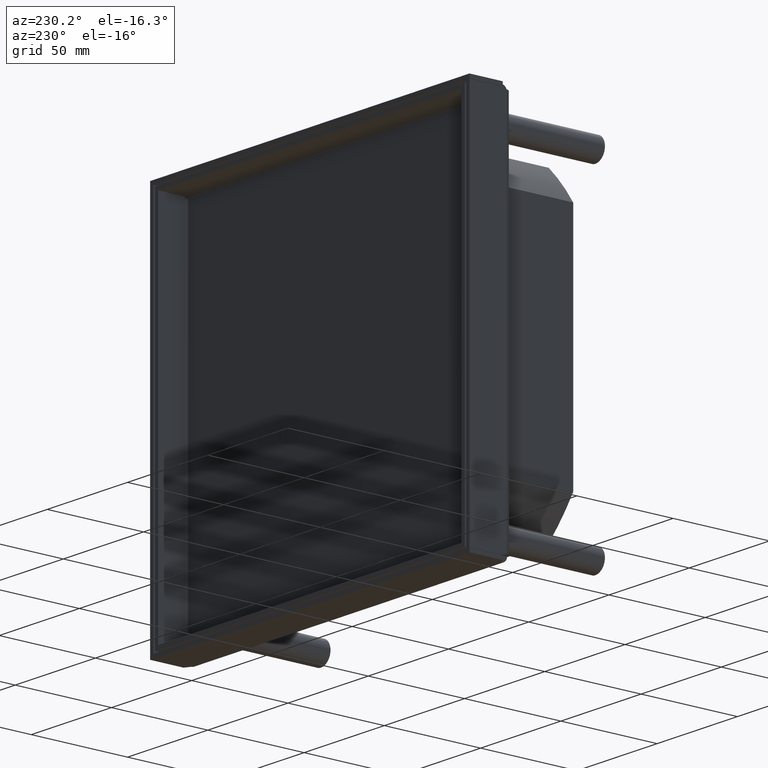
[diagram: clean part render]
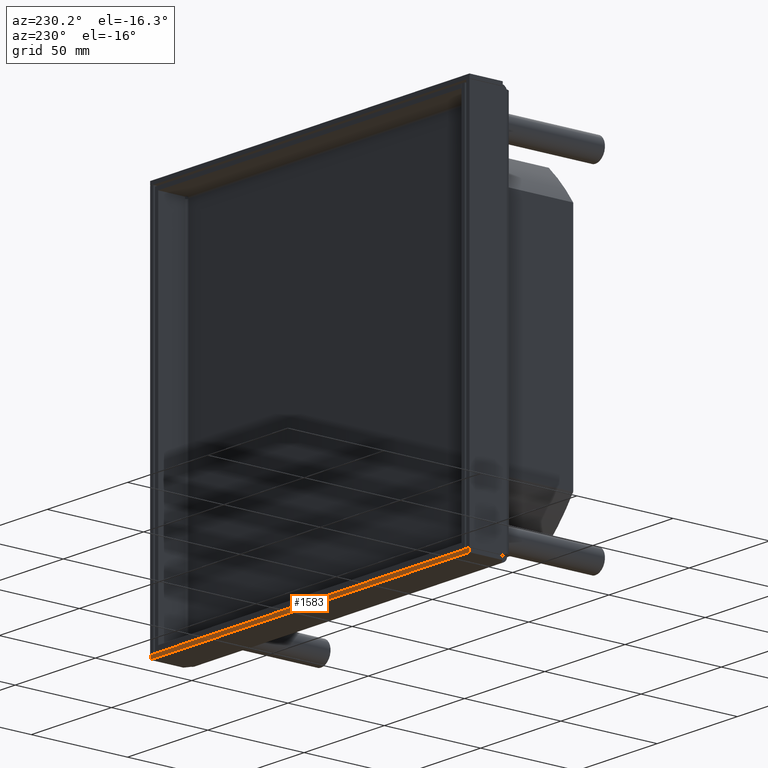
[diagram: same view with one face highlighted and labeled with its STEP entity id]
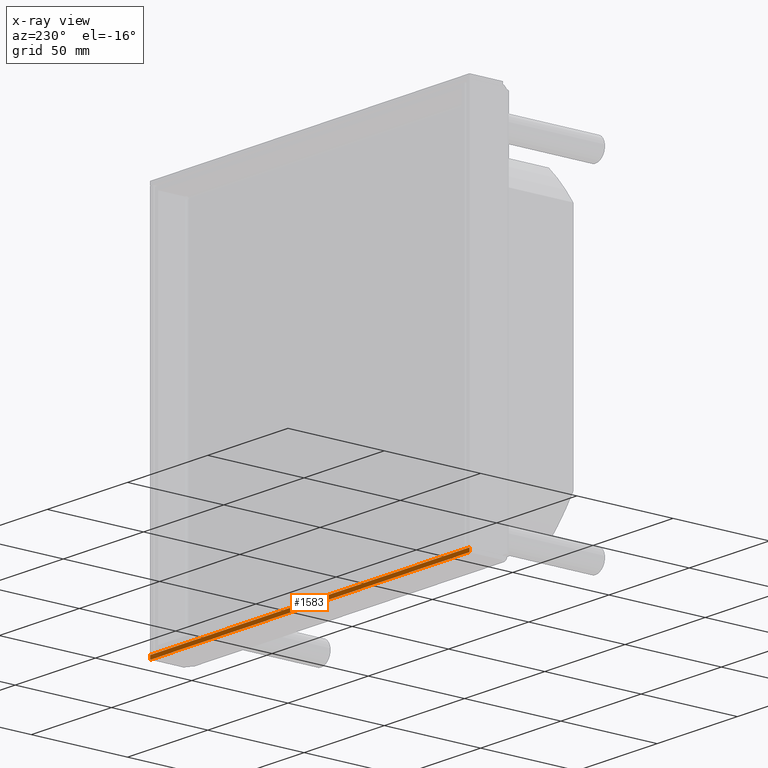
[diagram: x-ray of the same camera — body ghosted, the highlighted face saturated]
A machine part, auxiliary view. The second image highlights one B-rep face of the part: STEP entity #1583.
The next image is the same camera in x-ray: the body ghosted, the highlighted face saturated — about 0% of this face is hidden behind the body in this view.
In plain terms, the highlighted planar face has unit normal (0, -1, 0).
Its self-contained STEP definition (entity closure, byte-faithful):
#608=DIRECTION('',(0.E0,0.E0,-1.E0));
#609=VECTOR('',#608,1.99E2);
#610=CARTESIAN_POINT('',(9.75E1,2.2E1,9.95E1));
#611=LINE('',#610,#609);
#615=DIRECTION('',(1.E0,0.E0,0.E0));
#616=VECTOR('',#615,2.E0);
#617=CARTESIAN_POINT('',(9.75E1,2.2E1,-9.95E1));
#618=LINE('',#617,#616);
#622=DIRECTION('',(0.E0,0.E0,1.E0));
#623=VECTOR('',#622,1.99E2);
#624=CARTESIAN_POINT('',(9.95E1,2.2E1,-9.95E1));
#625=LINE('',#624,#623);
#745=DIRECTION('',(1.E0,0.E0,0.E0));
#746=VECTOR('',#745,2.E0);
#747=CARTESIAN_POINT('',(9.75E1,2.2E1,9.95E1));
#748=LINE('',#747,#746);
#1233=CARTESIAN_POINT('',(9.95E1,2.2E1,-9.95E1));
#1234=CARTESIAN_POINT('',(9.95E1,2.2E1,9.95E1));
#1235=VERTEX_POINT('',#1233);
#1236=VERTEX_POINT('',#1234);
#1241=CARTESIAN_POINT('',(9.75E1,2.2E1,9.95E1));
#1242=CARTESIAN_POINT('',(9.75E1,2.2E1,-9.95E1));
#1243=VERTEX_POINT('',#1241);
#1244=VERTEX_POINT('',#1242);
#1569=CARTESIAN_POINT('',(9.85E1,2.2E1,-4.975E1));
#1570=DIRECTION('',(0.E0,-1.E0,0.E0));
#1571=DIRECTION('',(0.E0,0.E0,-1.E0));
#1572=AXIS2_PLACEMENT_3D('',#1569,#1570,#1571);
#1573=PLANE('',#1572);
#1575=ORIENTED_EDGE('',*,*,#1574,.T.);
#1577=ORIENTED_EDGE('',*,*,#1576,.T.);
#1578=ORIENTED_EDGE('',*,*,#1555,.T.);
#1580=ORIENTED_EDGE('',*,*,#1579,.F.);
#1581=EDGE_LOOP('',(#1575,#1577,#1578,#1580));
#1582=FACE_OUTER_BOUND('',#1581,.F.);
#1555=EDGE_CURVE('',#1235,#1236,#625,.T.);
#1574=EDGE_CURVE('',#1243,#1244,#611,.T.);
#1576=EDGE_CURVE('',#1244,#1235,#618,.T.);
#1579=EDGE_CURVE('',#1243,#1236,#748,.T.);
#1583=ADVANCED_FACE('',(#1582),#1573,.F.);